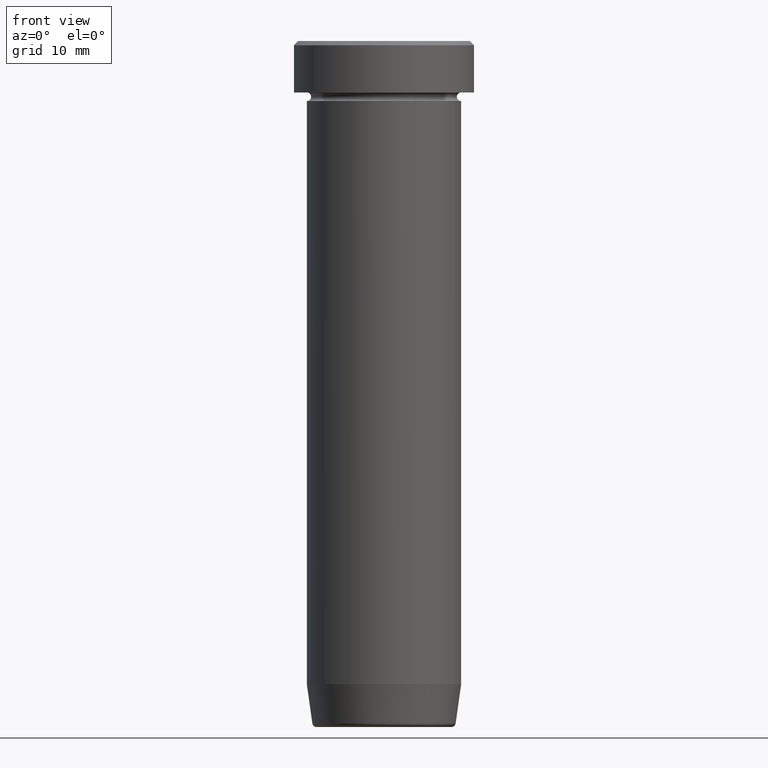
[diagram: clean part render]
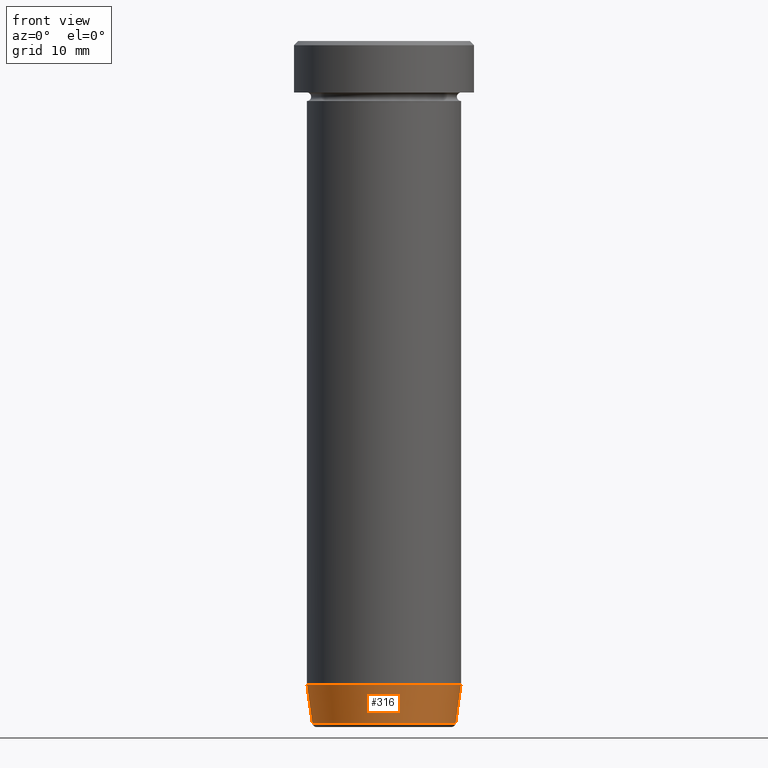
[diagram: same view with one face highlighted and labeled with its STEP entity id]
A machine part, front view. The second image highlights one B-rep face of the part: STEP entity #316.
In plain terms, the highlighted conical surface has half-angle 8 deg.
Its self-contained STEP definition (entity closure, byte-faithful):
#44 = LINE ( 'NONE', #536, #115 ) ;
#48 = DIRECTION ( 'NONE',  ( 1.000000000000000000, 0.000000000000000000, 0.000000000000000000 ) ) ;
#57 = CARTESIAN_POINT ( 'NONE',  ( -8.297295826488037207, 1.016125677548726751E-15, -80.00000000000001421 ) ) ;
#65 = ORIENTED_EDGE ( 'NONE', *, *, #286, .F. ) ;
#67 = DIRECTION ( 'NONE',  ( -0.1391731009600662428, 1.704378926181565534E-17, 0.9902680687415702510 ) ) ;
#96 = DIRECTION ( 'NONE',  ( -0.000000000000000000, -0.000000000000000000, 1.000000000000000000 ) ) ;
#99 = CIRCLE ( 'NONE', #534, 9.000000000000000000 ) ;
#101 = LINE ( 'NONE', #57, #317 ) ;
#114 = VERTEX_POINT ( 'NONE', #157 ) ;
#115 = VECTOR ( 'NONE', #401, 1000.000000000000000 ) ;
#125 = DIRECTION ( 'NONE',  ( -0.000000000000000000, -0.000000000000000000, 1.000000000000000000 ) ) ;
#157 = CARTESIAN_POINT ( 'NONE',  ( -8.357786491950706775, 1.062857883382529722E-15, -79.56958655048006790 ) ) ;
#164 = CIRCLE ( 'NONE', #248, 8.357786491950706775 ) ;
#173 = EDGE_CURVE ( 'NONE', #436, #491, #44, .T. ) ;
#179 = DIRECTION ( 'NONE',  ( 1.000000000000000000, 0.000000000000000000, 0.000000000000000000 ) ) ;
#192 = FACE_OUTER_BOUND ( 'NONE', #340, .T. ) ;
#248 = AXIS2_PLACEMENT_3D ( 'NONE', #351, #125, #485 ) ;
#249 = ORIENTED_EDGE ( 'NONE', *, *, #563, .T. ) ;
#258 = VERTEX_POINT ( 'NONE', #422 ) ;
#271 = AXIS2_PLACEMENT_3D ( 'NONE', #360, #415, #48 ) ;
#286 = EDGE_CURVE ( 'NONE', #114, #258, #101, .T. ) ;
#297 = EDGE_CURVE ( 'NONE', #258, #491, #99, .T. ) ;
#316 = ADVANCED_FACE ( 'NONE', ( #192 ), #328, .T. ) ;
#317 = VECTOR ( 'NONE', #67, 1000.000000000000000 ) ;
#328 = CONICAL_SURFACE ( 'NONE', #271, 8.297295826488037207, 0.1396263401595471687 ) ;
#340 = EDGE_LOOP ( 'NONE', ( #65, #249, #447, #507 ) ) ;
#342 = CARTESIAN_POINT ( 'NONE',  ( 8.357786491950706775, 0.000000000000000000, -79.56958655048006790 ) ) ;
#351 = CARTESIAN_POINT ( 'NONE',  ( 0.000000000000000000, 0.000000000000000000, -79.56958655048006790 ) ) ;
#360 = CARTESIAN_POINT ( 'NONE',  ( 0.000000000000000000, 0.000000000000000000, -80.00000000000001421 ) ) ;
#401 = DIRECTION ( 'NONE',  ( 0.1391731009600662428, 0.000000000000000000, 0.9902680687415702510 ) ) ;
#415 = DIRECTION ( 'NONE',  ( -0.000000000000000000, -0.000000000000000000, 1.000000000000000000 ) ) ;
#422 = CARTESIAN_POINT ( 'NONE',  ( -9.000000000000000000, 1.102182119232617714E-15, -75.00000000000001421 ) ) ;
#436 = VERTEX_POINT ( 'NONE', #342 ) ;
#447 = ORIENTED_EDGE ( 'NONE', *, *, #173, .T. ) ;
#485 = DIRECTION ( 'NONE',  ( -1.000000000000000000, 0.000000000000000000, 0.000000000000000000 ) ) ;
#491 = VERTEX_POINT ( 'NONE', #578 ) ;
#500 = CARTESIAN_POINT ( 'NONE',  ( 0.000000000000000000, 0.000000000000000000, -75.00000000000001421 ) ) ;
#507 = ORIENTED_EDGE ( 'NONE', *, *, #297, .F. ) ;
#534 = AXIS2_PLACEMENT_3D ( 'NONE', #500, #96, #179 ) ;
#536 = CARTESIAN_POINT ( 'NONE',  ( 8.297295826488037207, 0.000000000000000000, -80.00000000000001421 ) ) ;
#563 = EDGE_CURVE ( 'NONE', #114, #436, #164, .T. ) ;
#578 = CARTESIAN_POINT ( 'NONE',  ( 9.000000000000000000, 0.000000000000000000, -75.00000000000001421 ) ) ;